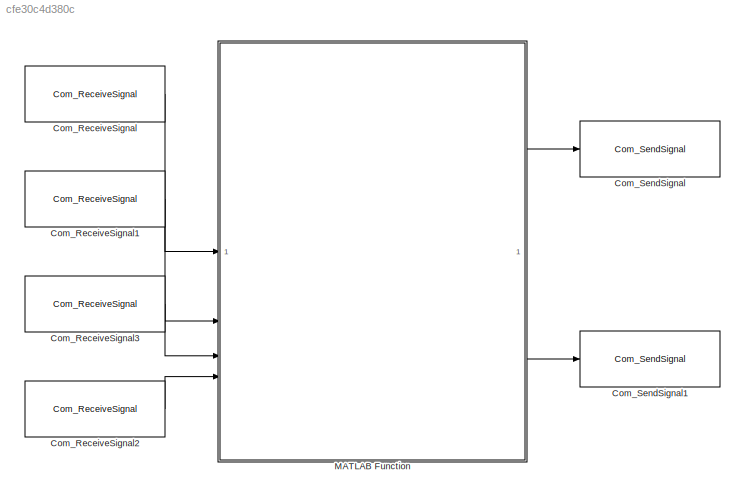
MODEL slx_cfe30c4d380c
KIND model
CONFIG AbsTol = auto
CONFIG EnableMultiTasking = off
CONFIG FixedStep = 0.01
CONFIG MaxStep = auto
CONFIG MinStep = auto
CONFIG RelTol = 1e-3
CONFIG SampleTimeConstraint = Unconstrained
CONFIG SolverName = FixedStepAuto
CONFIG StartTime = 0.0
CONFIG StopTime = inf
BLOCK [Reference] Com_ReceiveSignal  REF=motar_bsw_lib/ComStack/Com_ReceiveSignal
  SourceBlock = motar_bsw_lib/ComStack/Com_ReceiveSignal
  SourceProductName = ICT Motar Toolbox
BLOCK [Reference] Com_ReceiveSignal1  REF=motar_bsw_lib/ComStack/Com_ReceiveSignal
  SourceBlock = motar_bsw_lib/ComStack/Com_ReceiveSignal
  SourceProductName = ICT Motar Toolbox
BLOCK [Reference] Com_ReceiveSignal2  REF=motar_bsw_lib/ComStack/Com_ReceiveSignal
  SourceBlock = motar_bsw_lib/ComStack/Com_ReceiveSignal
  SourceProductName = ICT Motar Toolbox
BLOCK [Reference] Com_ReceiveSignal3  REF=motar_bsw_lib/ComStack/Com_ReceiveSignal
  SourceBlock = motar_bsw_lib/ComStack/Com_ReceiveSignal
  SourceProductName = ICT Motar Toolbox
BLOCK [Reference] Com_SendSignal  REF=motar_bsw_lib/ComStack/Com_SendSignal
  SourceBlock = motar_bsw_lib/ComStack/Com_SendSignal
  SourceProductName = ICT Motar Toolbox
BLOCK [Reference] Com_SendSignal1  REF=motar_bsw_lib/ComStack/Com_SendSignal
  SourceBlock = motar_bsw_lib/ComStack/Com_SendSignal
  SourceProductName = ICT Motar Toolbox
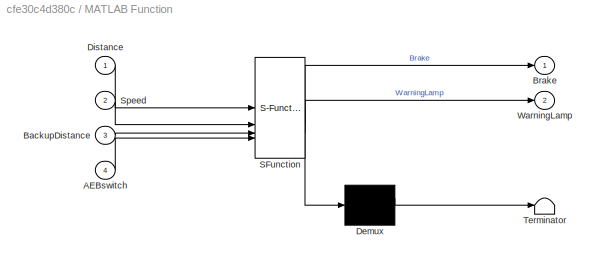
BLOCK [SubSystem] MATLAB Function
  ErrorFcn = Stateflow.Translate.translate
  PermitHierarchicalResolution = ExplicitOnly
  SFBlockType = MATLAB Function
  TreatAsAtomicUnit = on
BLOCK [Demux] MATLAB Function/ Demux 
  Outputs = 1
BLOCK [S-Function] MATLAB Function/ SFunction 
  EnableBusSupport = on
  FunctionName = sf_sfun
  PortCounts = [4 3]
  SFcnIsStateOwnerBlock = off
  SFunctionDeploymentMode = off
  Tag = Stateflow S-Function 2
BLOCK [Terminator] MATLAB Function/ Terminator 
BLOCK [Inport] MATLAB Function/AEBswitch
  Port = 4
BLOCK [Inport] MATLAB Function/BackupDistance
  Port = 3
BLOCK [Outport] MATLAB Function/Brake
BLOCK [Inport] MATLAB Function/Distance
BLOCK [Inport] MATLAB Function/Speed
  Port = 2
BLOCK [Outport] MATLAB Function/WarningLamp
  Port = 2
LINE Com_ReceiveSignal1:1 -> MATLAB Function:2
LINE Com_ReceiveSignal2:1 -> MATLAB Function:4
LINE Com_ReceiveSignal3:1 -> MATLAB Function:3
LINE Com_ReceiveSignal:1 -> MATLAB Function:1
LINE MATLAB Function:1 -> Com_SendSignal:1
LINE MATLAB Function:2 -> Com_SendSignal1:1
CHART MATLAB Function states=1 transitions=1
  STATE_LABEL 'eML_blk_kernel()'
  STATE_LABEL 'SCRIPT:\nfunction [Brake, WarningLamp] = emergencyBrakingLogic(Distance, Speed, BackupDistance, AEBswitch)\n% EMERGENCYBRAKINGLOGIC Calculate brake intensity based on filtered distance\n% Distance: Smoothed distance data (single)\n% Speed: Vehicle speed in kmph (uint8)\n% BackupDistance: Backup distance input in case primary fails (uint8)\n% AEBswitch: Automatic Emergency Braking switch (1 for ON, 0 for...<+3164ch>'
CHART  states=0 transitions=0
